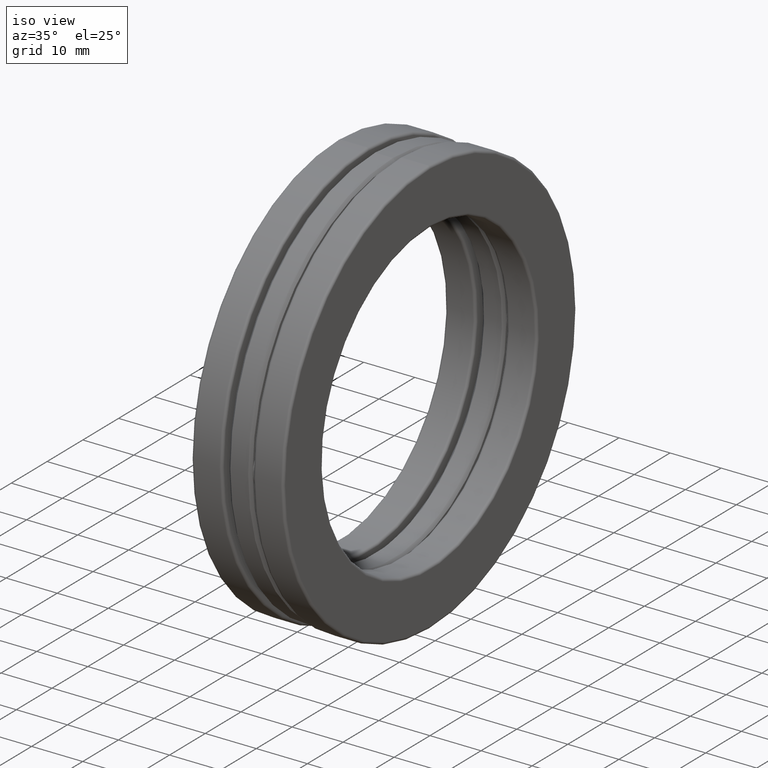
[diagram: clean part render]
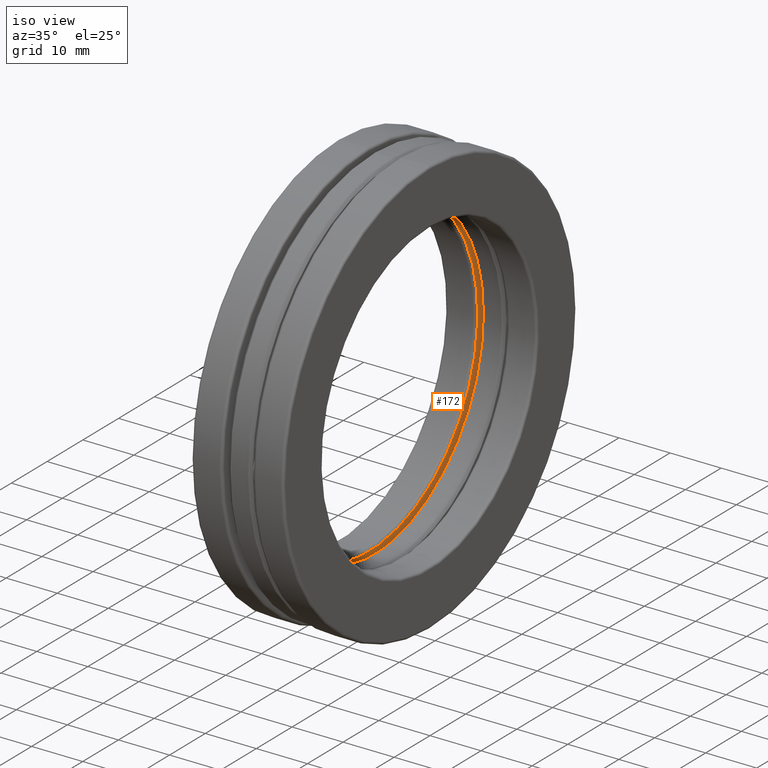
[diagram: same view with one face highlighted and labeled with its STEP entity id]
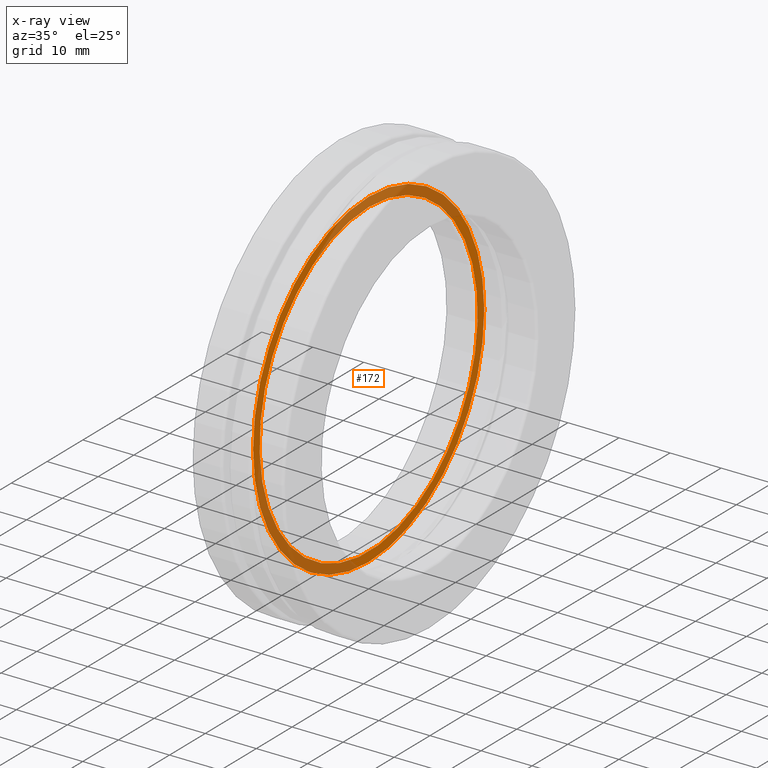
[diagram: x-ray of the same camera — body ghosted, the highlighted face saturated]
A machine part, iso view. The second image highlights one B-rep face of the part: STEP entity #172.
The next image is the same camera in x-ray: the body ghosted, the highlighted face saturated — about 41% of this face is hidden behind the body in this view.
In plain terms, the highlighted planar face has unit normal (1, 0, 0).
Its self-contained STEP definition (entity closure, byte-faithful):
#76 = EDGE_LOOP ( 'NONE', ( #935 ) ) ;
#110 = ORIENTED_EDGE ( 'NONE', *, *, #735, .T. ) ;
#144 = DIRECTION ( 'NONE',  ( 1.000000000000000000, 0.0000000000000000000, 0.0000000000000000000 ) ) ;
#172 = ADVANCED_FACE ( 'NONE', ( #429, #291 ), #591, .T. ) ;
#234 = EDGE_CURVE ( 'NONE', #1016, #1016, #392, .T. ) ;
#291 = FACE_OUTER_BOUND ( 'NONE', #76, .T. ) ;
#295 = AXIS2_PLACEMENT_3D ( 'NONE', #875, #786, #332 ) ;
#311 = VERTEX_POINT ( 'NONE', #514 ) ;
#332 = DIRECTION ( 'NONE',  ( 0.0000000000000000000, 0.0000000000000000000, 1.000000000000000000 ) ) ;
#392 = CIRCLE ( 'NONE', #950, 1.273208687556776100 ) ;
#400 = DIRECTION ( 'NONE',  ( 0.0000000000000000000, 0.0000000000000000000, 1.000000000000000000 ) ) ;
#429 = FACE_BOUND ( 'NONE', #607, .T. ) ;
#514 = CARTESIAN_POINT ( 'NONE',  ( -0.1181690299999998400, 0.0000000000000000000, 1.201000000000000100 ) ) ;
#591 = PLANE ( 'NONE',  #621 ) ;
#607 = EDGE_LOOP ( 'NONE', ( #110 ) ) ;
#621 = AXIS2_PLACEMENT_3D ( 'NONE', #842, #144, #853 ) ;
#658 = CARTESIAN_POINT ( 'NONE',  ( -0.1181690299999998700, 0.0000000000000000000, 1.273208687556776100 ) ) ;
#735 = EDGE_CURVE ( 'NONE', #311, #311, #811, .T. ) ;
#750 = DIRECTION ( 'NONE',  ( -1.000000000000000000, -0.0000000000000000000, -0.0000000000000000000 ) ) ;
#786 = DIRECTION ( 'NONE',  ( -1.000000000000000000, -0.0000000000000000000, -0.0000000000000000000 ) ) ;
#802 = CARTESIAN_POINT ( 'NONE',  ( -0.1181690299999998700, 0.0000000000000000000, 0.0000000000000000000 ) ) ;
#811 = CIRCLE ( 'NONE', #295, 1.201000000000000100 ) ;
#842 = CARTESIAN_POINT ( 'NONE',  ( -0.1181690299999998400, -3.080341865636936300E-017, 0.0000000000000000000 ) ) ;
#853 = DIRECTION ( 'NONE',  ( 0.0000000000000000000, 0.0000000000000000000, -1.000000000000000000 ) ) ;
#875 = CARTESIAN_POINT ( 'NONE',  ( -0.1181690299999998400, 0.0000000000000000000, 0.0000000000000000000 ) ) ;
#935 = ORIENTED_EDGE ( 'NONE', *, *, #234, .F. ) ;
#950 = AXIS2_PLACEMENT_3D ( 'NONE', #802, #750, #400 ) ;
#1016 = VERTEX_POINT ( 'NONE', #658 ) ;